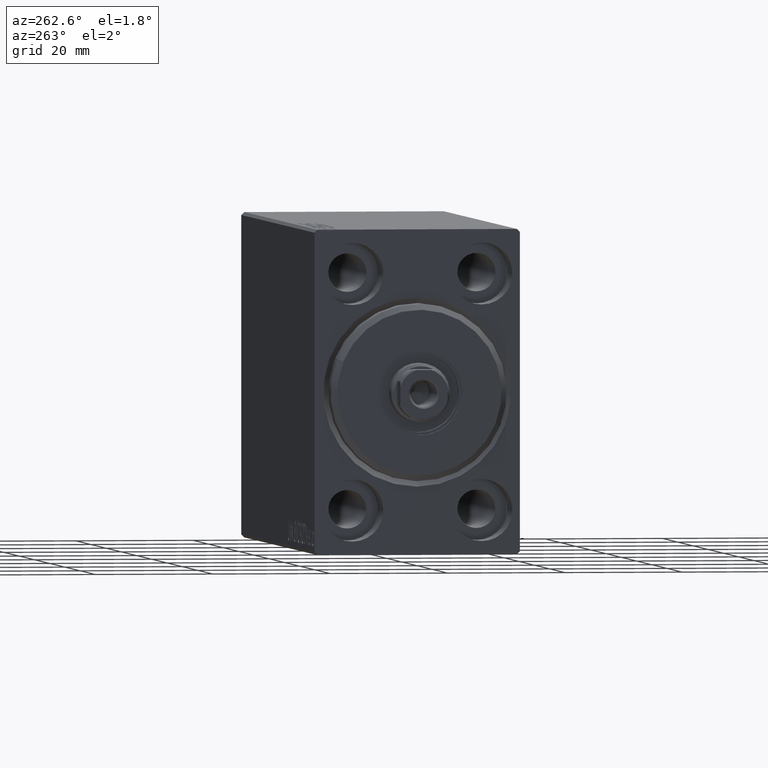
[diagram: clean part render]
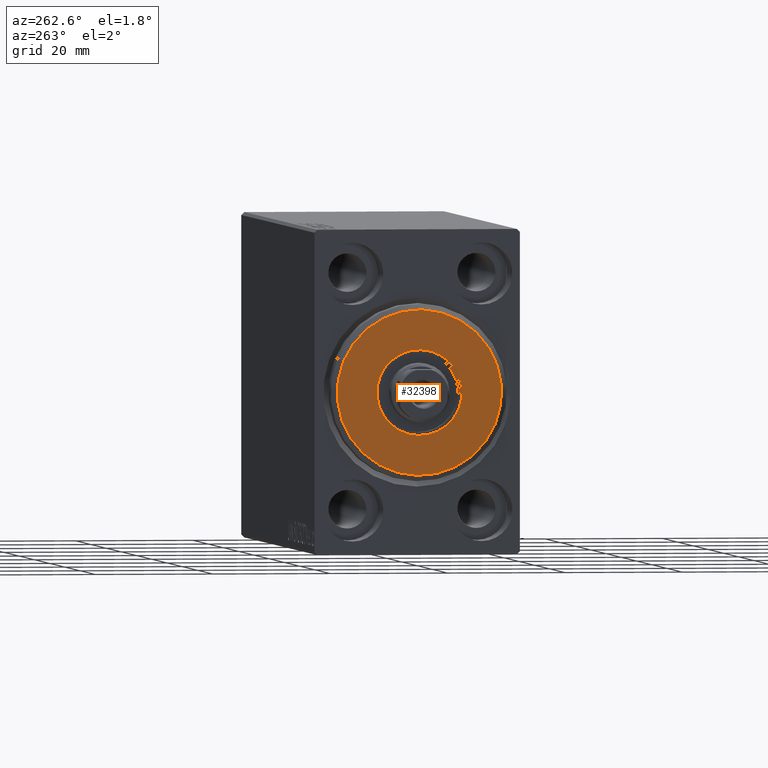
[diagram: same view with one face highlighted and labeled with its STEP entity id]
A machine part, auxiliary view. The second image highlights one B-rep face of the part: STEP entity #32398.
In plain terms, the highlighted planar face has unit normal (-1, 0, 0).
Its self-contained STEP definition (entity closure, byte-faithful):
#916 = CARTESIAN_POINT ( 'NONE',  ( 3.000000000000000000, 1.775737858763662015E-15, -13.99999999999999645 ) ) ;
#1038 = CARTESIAN_POINT ( 'NONE',  ( 3.000000000000000000, 0.000000000000000000, 0.000000000000000000 ) ) ;
#2305 = ORIENTED_EDGE ( 'NONE', *, *, #31760, .T. ) ;
#2688 = DIRECTION ( 'NONE',  ( 1.000000000000000000, -0.000000000000000000, 0.000000000000000000 ) ) ;
#3580 = AXIS2_PLACEMENT_3D ( 'NONE', #32829, #15317, #42795 ) ;
#4358 = CIRCLE ( 'NONE', #12122, 7.249999999999999112 ) ;
#6556 = CIRCLE ( 'NONE', #15112, 13.99999999999999645 ) ;
#7939 = CARTESIAN_POINT ( 'NONE',  ( 3.000000000000000000, 0.000000000000000000, 0.000000000000000000 ) ) ;
#8521 = AXIS2_PLACEMENT_3D ( 'NONE', #7939, #11060, #34814 ) ;
#8940 = EDGE_CURVE ( 'NONE', #17899, #23839, #40250, .T. ) ;
#10833 = CARTESIAN_POINT ( 'NONE',  ( 3.000000000000000000, 0.000000000000000000, 0.000000000000000000 ) ) ;
#11060 = DIRECTION ( 'NONE',  ( 1.000000000000000000, -0.000000000000000000, 0.000000000000000000 ) ) ;
#11764 = PLANE ( 'NONE',  #3580 ) ;
#12122 = AXIS2_PLACEMENT_3D ( 'NONE', #1038, #21025, #28118 ) ;
#13109 = EDGE_LOOP ( 'NONE', ( #2305, #13337 ) ) ;
#13317 = DIRECTION ( 'NONE',  ( 1.000000000000000000, 0.000000000000000000, 0.000000000000000000 ) ) ;
#13337 = ORIENTED_EDGE ( 'NONE', *, *, #26575, .T. ) ;
#14880 = CIRCLE ( 'NONE', #8521, 13.99999999999999645 ) ;
#15112 = AXIS2_PLACEMENT_3D ( 'NONE', #19577, #2688, #16238 ) ;
#15317 = DIRECTION ( 'NONE',  ( 1.000000000000000000, -0.000000000000000000, 0.000000000000000000 ) ) ;
#15409 = ORIENTED_EDGE ( 'NONE', *, *, #38822, .F. ) ;
#15632 = VERTEX_POINT ( 'NONE', #916 ) ;
#16238 = DIRECTION ( 'NONE',  ( 0.000000000000000000, 0.000000000000000000, -1.000000000000000000 ) ) ;
#17284 = CARTESIAN_POINT ( 'NONE',  ( 3.000000000000000000, 0.000000000000000000, 13.99999999999999645 ) ) ;
#17899 = VERTEX_POINT ( 'NONE', #33843 ) ;
#19577 = CARTESIAN_POINT ( 'NONE',  ( 3.000000000000000000, 0.000000000000000000, 0.000000000000000000 ) ) ;
#20990 = ORIENTED_EDGE ( 'NONE', *, *, #8940, .F. ) ;
#21025 = DIRECTION ( 'NONE',  ( 1.000000000000000000, 0.000000000000000000, 0.000000000000000000 ) ) ;
#21881 = EDGE_LOOP ( 'NONE', ( #15409, #20990 ) ) ;
#23839 = VERTEX_POINT ( 'NONE', #35068 ) ;
#26575 = EDGE_CURVE ( 'NONE', #15632, #28436, #6556, .T. ) ;
#28118 = DIRECTION ( 'NONE',  ( 0.000000000000000000, 0.000000000000000000, -1.000000000000000000 ) ) ;
#28436 = VERTEX_POINT ( 'NONE', #17284 ) ;
#31760 = EDGE_CURVE ( 'NONE', #28436, #15632, #14880, .T. ) ;
#32398 = ADVANCED_FACE ( 'NONE', ( #33043, #42376 ), #11764, .T. ) ;
#32829 = CARTESIAN_POINT ( 'NONE',  ( 3.000000000000000000, 0.000000000000000000, 0.000000000000000000 ) ) ;
#33043 = FACE_OUTER_BOUND ( 'NONE', #13109, .T. ) ;
#33843 = CARTESIAN_POINT ( 'NONE',  ( 3.000000000000000000, 8.878689293818310074E-16, 7.249999999999999112 ) ) ;
#34583 = DIRECTION ( 'NONE',  ( 0.000000000000000000, 0.000000000000000000, -1.000000000000000000 ) ) ;
#34814 = DIRECTION ( 'NONE',  ( 0.000000000000000000, 0.000000000000000000, -1.000000000000000000 ) ) ;
#35068 = CARTESIAN_POINT ( 'NONE',  ( 3.000000000000000000, 0.000000000000000000, -7.249999999999999112 ) ) ;
#38822 = EDGE_CURVE ( 'NONE', #23839, #17899, #4358, .T. ) ;
#40250 = CIRCLE ( 'NONE', #43782, 7.249999999999999112 ) ;
#42376 = FACE_BOUND ( 'NONE', #21881, .T. ) ;
#42795 = DIRECTION ( 'NONE',  ( 0.000000000000000000, 0.000000000000000000, -1.000000000000000000 ) ) ;
#43782 = AXIS2_PLACEMENT_3D ( 'NONE', #10833, #13317, #34583 ) ;